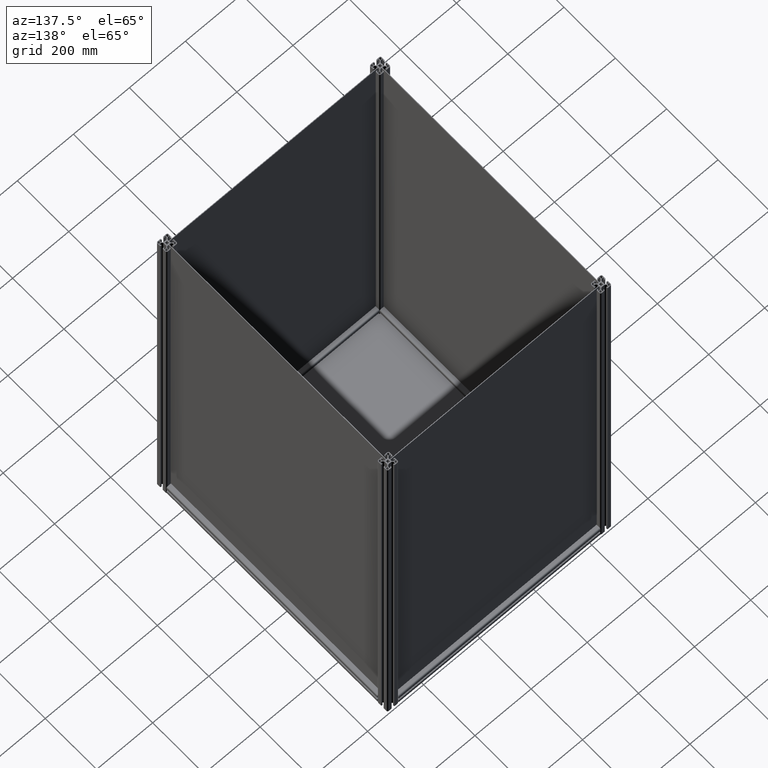
[diagram: clean part render]
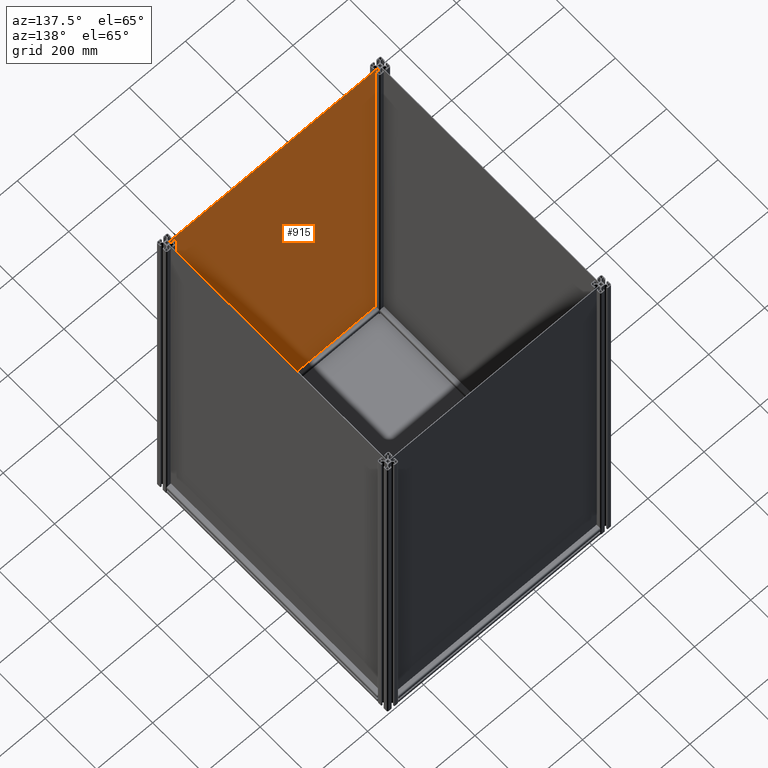
[diagram: same view with one face highlighted and labeled with its STEP entity id]
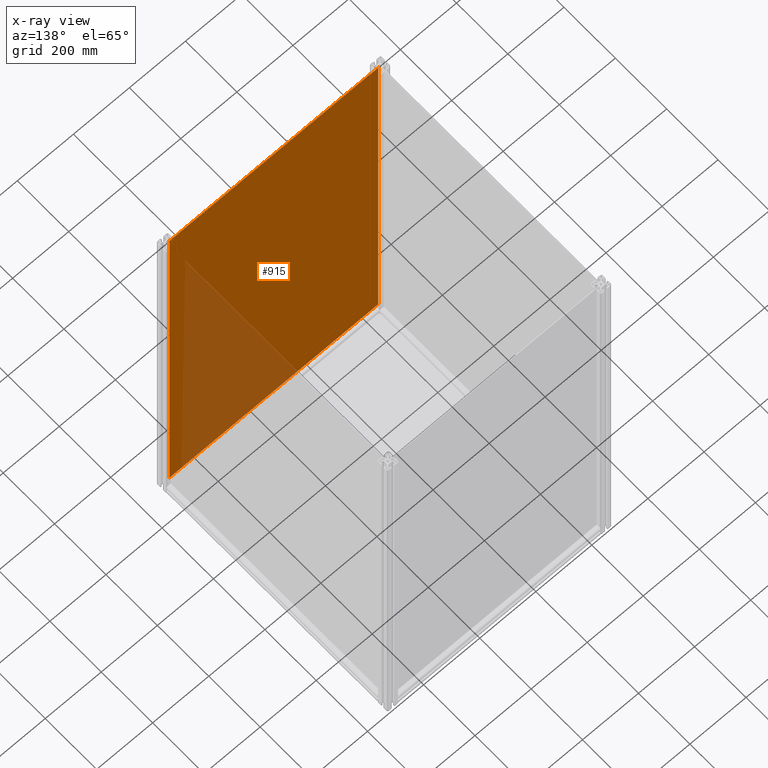
[diagram: x-ray of the same camera — body ghosted, the highlighted face saturated]
A machine part, auxiliary view. The second image highlights one B-rep face of the part: STEP entity #915.
The next image is the same camera in x-ray: the body ghosted, the highlighted face saturated — about 24% of this face is hidden behind the body in this view.
In plain terms, the highlighted planar face has unit normal (0, 1, 0).
Its self-contained STEP definition (entity closure, byte-faithful):
#757 = EDGE_CURVE ( 'NONE', #15804, #3437, #9700, .T. ) ;
#835 = DIRECTION ( 'NONE',  ( -1.000000000000000000, 0.000000000000000000, 0.000000000000000000 ) ) ;
#915 = ADVANCED_FACE ( 'NONE', ( #1769 ), #1994, .T. ) ;
#1769 = FACE_OUTER_BOUND ( 'NONE', #12769, .T. ) ;
#1817 = ORIENTED_EDGE ( 'NONE', *, *, #2600, .T. ) ;
#1994 = PLANE ( 'NONE',  #12405 ) ;
#2359 = CARTESIAN_POINT ( 'NONE',  ( -28.32696245733819751, 257.8730375426625301, 0.000000000000000000 ) ) ;
#2477 = VECTOR ( 'NONE', #11883, 1000.000000000000000 ) ;
#2504 = ORIENTED_EDGE ( 'NONE', *, *, #13893, .T. ) ;
#2600 = EDGE_CURVE ( 'NONE', #15431, #3437, #13492, .T. ) ;
#3238 = CARTESIAN_POINT ( 'NONE',  ( 0.000000000000000000, 0.000000000000000000, 0.000000000000000000 ) ) ;
#3437 = VERTEX_POINT ( 'NONE', #13404 ) ;
#4046 = CARTESIAN_POINT ( 'NONE',  ( -773.1269624573383226, -1214.526962457337504, 0.000000000000000000 ) ) ;
#5785 = DIRECTION ( 'NONE',  ( 0.000000000000000000, 0.000000000000000000, 1.000000000000000000 ) ) ;
#6088 = CARTESIAN_POINT ( 'NONE',  ( -28.32696245733845686, -1214.526962457337504, 0.000000000000000000 ) ) ;
#6738 = CARTESIAN_POINT ( 'NONE',  ( -600.7269624573378906, 257.8730375426625301, 0.000000000000000000 ) ) ;
#7127 = DIRECTION ( 'NONE',  ( 1.000000000000000000, 0.000000000000000000, 0.000000000000000000 ) ) ;
#7402 = ORIENTED_EDGE ( 'NONE', *, *, #757, .F. ) ;
#9044 = VECTOR ( 'NONE', #16448, 1000.000000000000000 ) ;
#9700 = LINE ( 'NONE', #12061, #15164 ) ;
#11883 = DIRECTION ( 'NONE',  ( -1.000000000000000000, 0.000000000000000000, 0.000000000000000000 ) ) ;
#12061 = CARTESIAN_POINT ( 'NONE',  ( -773.1269624573380952, 257.8730375426625301, 0.000000000000000000 ) ) ;
#12405 = AXIS2_PLACEMENT_3D ( 'NONE', #3238, #5785, #7127 ) ;
#12763 = CARTESIAN_POINT ( 'NONE',  ( -28.32696245733845686, -1214.526962457337504, 0.000000000000000000 ) ) ;
#12769 = EDGE_LOOP ( 'NONE', ( #1817, #7402, #13167, #2504 ) ) ;
#13167 = ORIENTED_EDGE ( 'NONE', *, *, #15254, .F. ) ;
#13404 = CARTESIAN_POINT ( 'NONE',  ( -773.1269624573380952, 257.8730375426625301, 0.000000000000000000 ) ) ;
#13492 = LINE ( 'NONE', #6738, #2477 ) ;
#13893 = EDGE_CURVE ( 'NONE', #15044, #15431, #15095, .T. ) ;
#13900 = VECTOR ( 'NONE', #835, 1000.000000000000000 ) ;
#14153 = CARTESIAN_POINT ( 'NONE',  ( -28.32696245733819751, 257.8730375426625301, 0.000000000000000000 ) ) ;
#14702 = LINE ( 'NONE', #6088, #13900 ) ;
#15044 = VERTEX_POINT ( 'NONE', #12763 ) ;
#15095 = LINE ( 'NONE', #2359, #9044 ) ;
#15164 = VECTOR ( 'NONE', #15889, 1000.000000000000000 ) ;
#15254 = EDGE_CURVE ( 'NONE', #15044, #15804, #14702, .T. ) ;
#15431 = VERTEX_POINT ( 'NONE', #14153 ) ;
#15804 = VERTEX_POINT ( 'NONE', #4046 ) ;
#15889 = DIRECTION ( 'NONE',  ( 1.508045401555496405E-16, 1.000000000000000000, -0.000000000000000000 ) ) ;
#16448 = DIRECTION ( 'NONE',  ( -1.117974313196651756E-16, 1.000000000000000000, 0.000000000000000000 ) ) ;